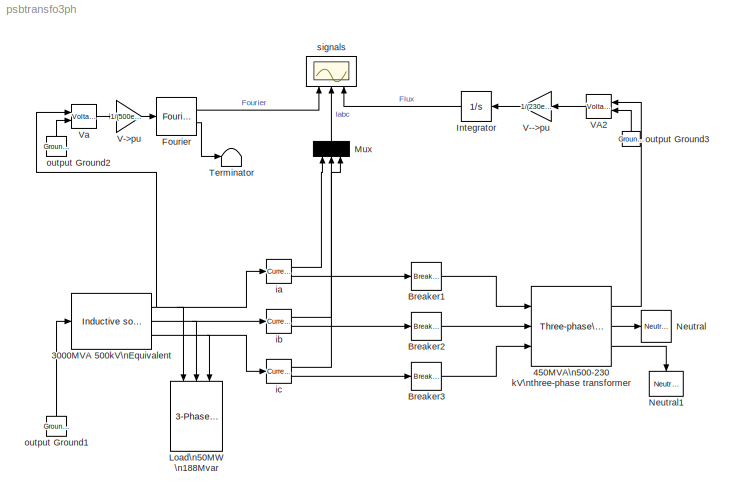
MODEL psbtransfo3ph
KIND model
CONFIG InitFcn = powericon('psbinitsys',bdroot);
BLOCK [Reference] 3000MVA  500kV\nEquivalent  REF=powerlib_extras/Three-Phase\nLibrary/Inductive source\nwith neutral
  F = 60
  L = 0.221
  Phi = 0
  Ports = [1, 3]
  R = 5.55
  SourceBlock = powerlib_extras/Three-Phase\nLibrary/Inductive source\nwith neutral
  SourceType = 3-phase inductive source - Ungrounded neutral
  V = 500e3/sqrt(3)*sqrt(2)
BLOCK [Reference] 450MVA\n500-230 kV\nthree-phase transformer  REF=powerlib2/Elements/Three-phase\nTransformer\n(Two Windings)
  PSBOutputType = 1111
  Ports = [3, 3]
  SourceBlock = powerlib2/Elements/Three-phase\nTransformer\n(Two Windings)
  SourceType = Three-Phase Transformer (Two Windings)
  Tag = PoWeRsYsTeMbLoCk
  hyst = off
  initialslopes = [+1 +1 +1]
  lm = 500
  matfile = 'hysteresis'
  mesure = None
  nominal = [ 450e6 60 ]
  params1 = [ 500e3 0.002 0.08 ]
  params2 = [ 230e3 0.002 0.08]
  phi0 = [0.8  -0.4  0.4]
  rmag = 500
  sat = [0 0; 0.0 1.2; 1.0  1.52]
  sif = on
  type1 = Yg
  type2 = Yg
  ynsat = on
BLOCK [Reference] Breaker1  REF=powerlib2/Elements/Breaker
  PSBOutputType = 1
  Ports = [1, 1]
  SourceBlock = powerlib2/Elements/Breaker
  SourceType = Breaker
  Tag = PoWeRsYsTeMbLoCk
  Ts = 0
  a = 1e-2
  c = 0
  comext = off
  cs = inf
  mesure = None
  rs = 100e6
  times = .05
BLOCK [Reference] Breaker2  REF=powerlib2/Elements/Breaker
  PSBOutputType = 1
  Ports = [1, 1]
  SourceBlock = powerlib2/Elements/Breaker
  SourceType = Breaker
  Tag = PoWeRsYsTeMbLoCk
  Ts = 0
  a = 1e-2
  c = 0
  comext = off
  cs = inf
  mesure = None
  rs = 100e6
  times = .05
BLOCK [Reference] Breaker3  REF=powerlib2/Elements/Breaker
  PSBOutputType = 1
  Ports = [1, 1]
  SourceBlock = powerlib2/Elements/Breaker
  SourceType = Breaker
  Tag = PoWeRsYsTeMbLoCk
  Ts = 0
  a = 1e-2
  c = 0
  comext = off
  cs = inf
  mesure = None
  rs = 100e6
  times = .05
BLOCK [Reference] Fourier  REF=powerlib_extras/Measurements/Fourier
  Ports = [1, 2]
  SourceBlock = powerlib_extras/Measurements/Fourier
  SourceType = Fourier analyser
  f1 = 60
  n = 4
BLOCK [Integrator] Integrator
  InitialCondition = 0.8
  Ports = [1, 1]
BLOCK [Reference] Load\n50MW \n188Mvar  REF=powerlib2/Elements/3-Phase\nParallel RLC Load
  P3 = 50e6
  Ports = [3]
  QC3 = 188e6
  QL3 = 0
  SourceBlock = powerlib2/Elements/3-Phase\nParallel RLC Load
  SourceType = 3-phase parallel RLC load
  Vpp = 500e3
  fn = 60
BLOCK [Mux] Mux
  Inputs = 3
  Ports = [3, 1]
BLOCK [Reference] Neutral  REF=powerlib2/Connectors/Neutral (input)
  Ports = [1]
  SourceBlock = powerlib2/Connectors/Neutral (input)
  SourceType = Neutral
  Tag = PoWeRsYsTeMbLoCk
  no = 991
BLOCK [Reference] Neutral1  REF=powerlib2/Connectors/Neutral (input)
  Ports = [1]
  SourceBlock = powerlib2/Connectors/Neutral (input)
  SourceType = Neutral
  Tag = PoWeRsYsTeMbLoCk
  no = 992
BLOCK [Terminator] Terminator
BLOCK [Gain] V-->pu
  Gain = 1/(230e3/sqrt(3)*sqrt(2)/2/pi/60)
BLOCK [Gain] V->pu
  Gain = 1/(500e3/sqrt(3)*sqrt(2))
BLOCK [Reference] VA2  REF=powerlib2/Measurements/Voltage Measurement
  OutputType = Magnitude
  PSBOutputType = 0
  PSBequivalent = 0
  PhasorSimulation = off
  Ports = [2, 1]
  SourceBlock = powerlib2/Measurements/Voltage Measurement
  SourceType = Voltage Measurement
  Tag = PoWeRsYsTeMmEaSuReMeNt
BLOCK [Reference] Va  REF=powerlib2/Measurements/Voltage Measurement
  OutputType = Magnitude
  PSBOutputType = 0
  PSBequivalent = 0
  PhasorSimulation = off
  Ports = [2, 1]
  SourceBlock = powerlib2/Measurements/Voltage Measurement
  SourceType = Voltage Measurement
  Tag = PoWeRsYsTeMmEaSuReMeNt
BLOCK [Reference] ia  REF=powerlib2/Measurements/Current Measurement
  OutputType = Magnitude
  PSBOutputType = 01
  PSBequivalent = 0
  PhasorSimulation = off
  Ports = [1, 2]
  SourceBlock = powerlib2/Measurements/Current Measurement
  SourceType = Current Measurement
  Tag = PoWeRsYsTeMmEaSuReMeNt
BLOCK [Reference] ib  REF=powerlib2/Measurements/Current Measurement
  OutputType = Magnitude
  PSBOutputType = 01
  PSBequivalent = 0
  PhasorSimulation = off
  Ports = [1, 2]
  SourceBlock = powerlib2/Measurements/Current Measurement
  SourceType = Current Measurement
  Tag = PoWeRsYsTeMmEaSuReMeNt
BLOCK [Reference] ic  REF=powerlib2/Measurements/Current Measurement
  OutputType = Magnitude
  PSBOutputType = 01
  PSBequivalent = 0
  PhasorSimulation = off
  Ports = [1, 2]
  SourceBlock = powerlib2/Measurements/Current Measurement
  SourceType = Current Measurement
  Tag = PoWeRsYsTeMmEaSuReMeNt
BLOCK [Reference] output Ground1  REF=powerlib2/Connectors/Ground (output)
  PSBOutputType = 1
  Ports = [0, 1]
  SourceBlock = powerlib2/Connectors/Ground (output)
  SourceType = Ground
  Tag = PoWeRsYsTeMbLoCk
BLOCK [Reference] output Ground2  REF=powerlib2/Connectors/Ground (output)
  PSBOutputType = 1
  Ports = [0, 1]
  SourceBlock = powerlib2/Connectors/Ground (output)
  SourceType = Ground
  Tag = PoWeRsYsTeMbLoCk
BLOCK [Reference] output Ground3  REF=powerlib2/Connectors/Ground (output)
  PSBOutputType = 1
  Ports = [0, 1]
  SourceBlock = powerlib2/Connectors/Ground (output)
  SourceType = Ground
  Tag = PoWeRsYsTeMbLoCk
BLOCK [Scope] signals
  DataFormat = Structure
  NumInputPorts = 3
  Ports = [3]
  TimeRange = 0.2
  YMax = 3000~5~5
  YMin = -2000~-5~-5
NET 3000MVA  500kV\nEquivalent:1 -> Load\n50MW \n188Mvar:1, Va:1, ia:1
NET 3000MVA  500kV\nEquivalent:2 -> Load\n50MW \n188Mvar:2, ib:1
NET 3000MVA  500kV\nEquivalent:3 -> Load\n50MW \n188Mvar:3, ic:1
LINE 450MVA\n500-230 kV\nthree-phase transformer:1 -> VA2:1
LINE 450MVA\n500-230 kV\nthree-phase transformer:2 -> Neutral:1
LINE 450MVA\n500-230 kV\nthree-phase transformer:3 -> Neutral1:1
LINE Breaker1:1 -> 450MVA\n500-230 kV\nthree-phase transformer:1
LINE Breaker2:1 -> 450MVA\n500-230 kV\nthree-phase transformer:2
LINE Breaker3:1 -> 450MVA\n500-230 kV\nthree-phase transformer:3
LINE Fourier:1 -> signals:1
LINE Fourier:2 -> Terminator:1
LINE Integrator:1 -> signals:3
LINE Mux:1 -> signals:2
LINE V-->pu:1 -> Integrator:1
LINE V->pu:1 -> Fourier:1
LINE VA2:1 -> V-->pu:1
LINE Va:1 -> V->pu:1
LINE ia:1 -> Mux:1
LINE ia:2 -> Breaker1:1
LINE ib:1 -> Mux:2
LINE ib:2 -> Breaker2:1
LINE ic:1 -> Mux:3
LINE ic:2 -> Breaker3:1
LINE output Ground1:1 -> 3000MVA  500kV\nEquivalent:1
LINE output Ground2:1 -> Va:2
LINE output Ground3:1 -> VA2:2
note: NET lines group one-source signal fan-out (src -> all destinations, sorted); 1:1 wires keep LINE
